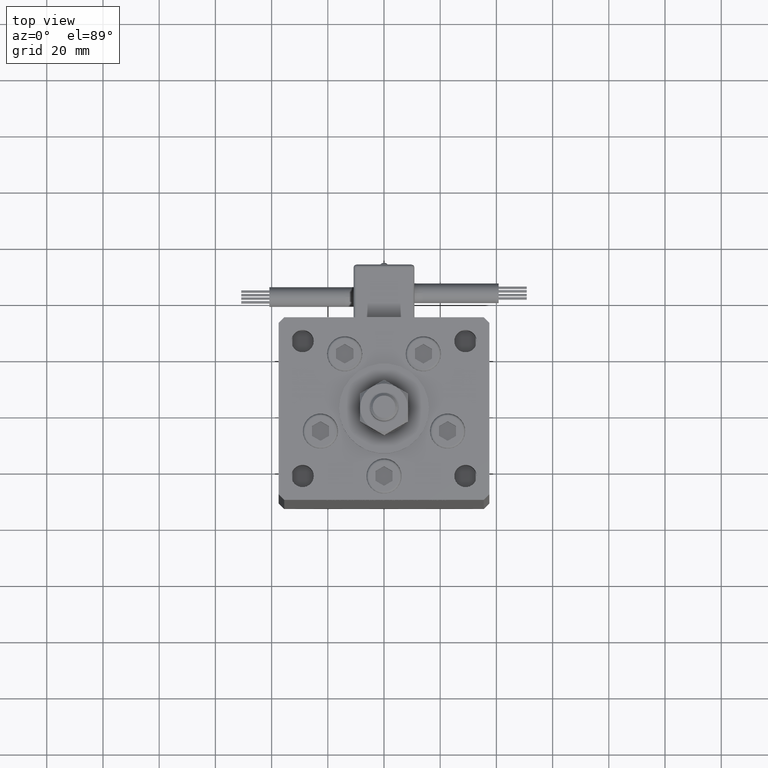
[diagram: clean part render]
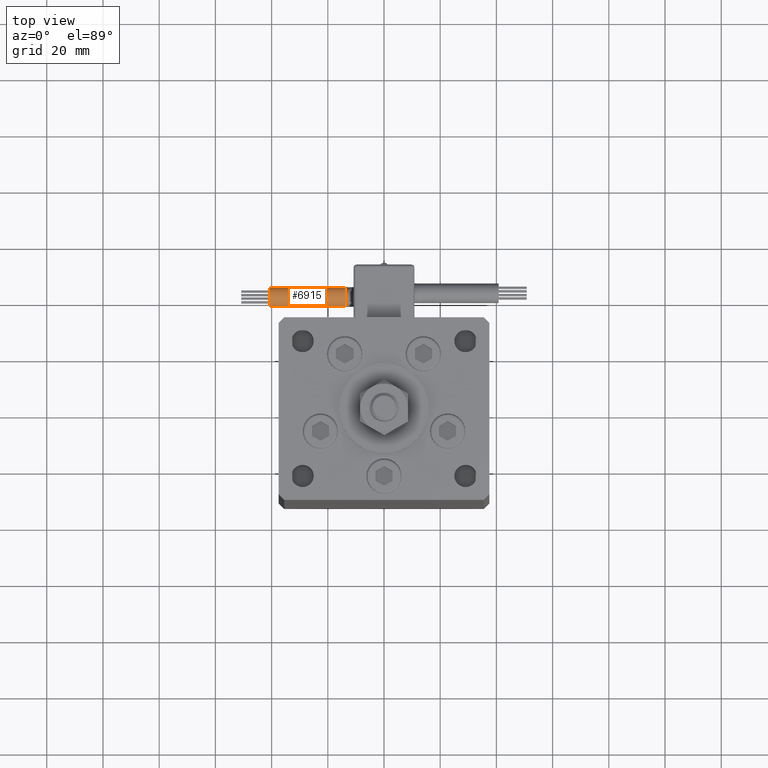
[diagram: same view with one face highlighted and labeled with its STEP entity id]
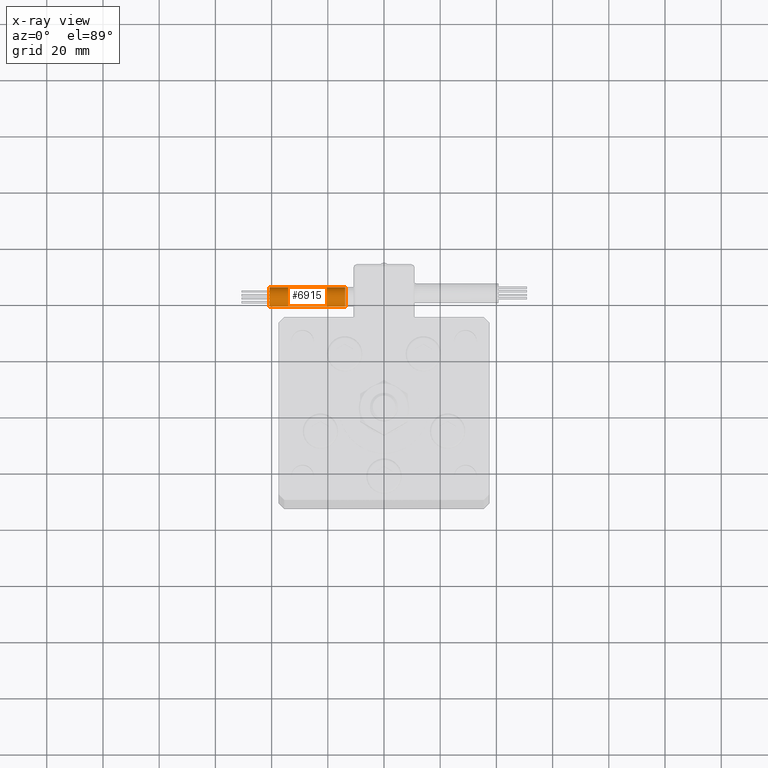
[diagram: x-ray of the same camera — body ghosted, the highlighted face saturated]
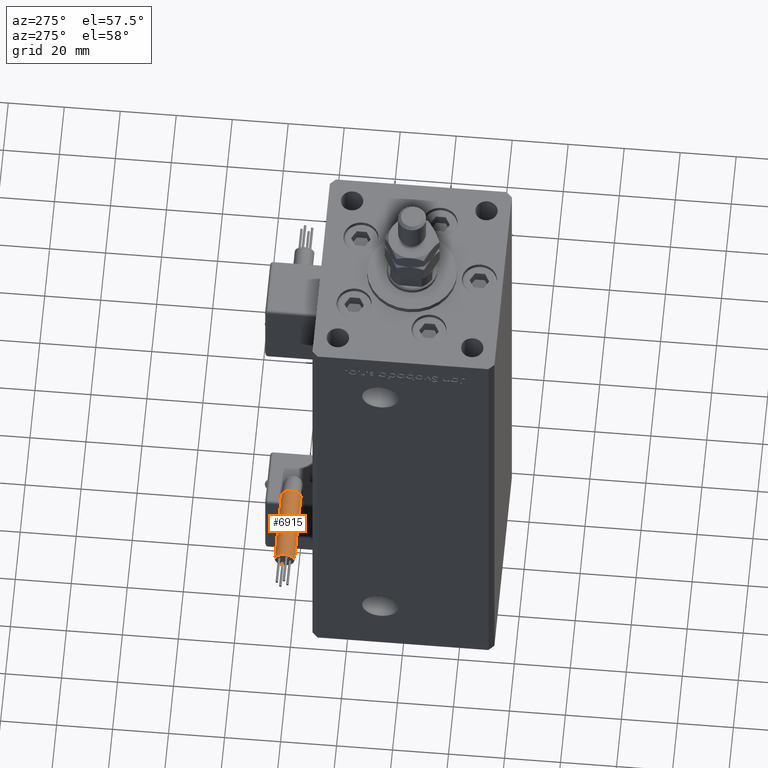
[diagram: same view with one face highlighted and labeled with its STEP entity id]
A machine part, top view. The second image highlights one B-rep face of the part: STEP entity #6915.
The next image is the same camera in x-ray: the body ghosted, the highlighted face saturated — about 0% of this face is hidden behind the body in this view.
A second angle (auxiliary view) of the same face is appended — the face is thin or edge-on in the first view.
In plain terms, the highlighted cylindrical surface (edge-blend (fillet) strip) has radius 3.5 mm, axis along (-1, -0, 0).
Its self-contained STEP definition (entity closure, byte-faithful):
#1194 = CARTESIAN_POINT ( 'NONE',  ( 40.80000000000000426, 38.50000000000000000, -65.00000000000000000 ) ) ;
#1781 = ORIENTED_EDGE ( 'NONE', *, *, #28322, .T. ) ;
#2211 = DIRECTION ( 'NONE',  ( 0.000000000000000000, 0.000000000000000000, -1.000000000000000000 ) ) ;
#2798 = EDGE_CURVE ( 'NONE', #25442, #54792, #56170, .T. ) ;
#3182 = DIRECTION ( 'NONE',  ( 1.000000000000000000, -2.599999999999999847E-16, 2.220446049250000002E-16 ) ) ;
#3421 = EDGE_CURVE ( 'NONE', #54792, #8565, #45185, .T. ) ;
#6128 = CARTESIAN_POINT ( 'NONE',  ( 13.79999999999999893, 45.50000000000000711, -65.00000000000000000 ) ) ;
#6915 = ADVANCED_FACE ( 'NONE', ( #32352 ), #19400, .T. ) ;
#8565 = VERTEX_POINT ( 'NONE', #6128 ) ;
#8568 = DIRECTION ( 'NONE',  ( 1.000000000000000000, 0.000000000000000000, 2.220446049250000002E-16 ) ) ;
#12619 = CARTESIAN_POINT ( 'NONE',  ( 13.79999999999999716, 38.50000000000000000, -65.00000000000000000 ) ) ;
#17493 = VERTEX_POINT ( 'NONE', #1194 ) ;
#18825 = EDGE_CURVE ( 'NONE', #25442, #17493, #25545, .T. ) ;
#19400 = CYLINDRICAL_SURFACE ( 'NONE', #38910, 3.500000000000003109 ) ;
#19802 = AXIS2_PLACEMENT_3D ( 'NONE', #30909, #48421, #44667 ) ;
#21332 = ORIENTED_EDGE ( 'NONE', *, *, #2798, .T. ) ;
#22235 = AXIS2_PLACEMENT_3D ( 'NONE', #28593, #28039, #2211 ) ;
#23317 = ORIENTED_EDGE ( 'NONE', *, *, #3421, .T. ) ;
#25040 = CARTESIAN_POINT ( 'NONE',  ( 40.80000000000000426, 45.50000000000000711, -65.00000000000000000 ) ) ;
#25442 = VERTEX_POINT ( 'NONE', #54991 ) ;
#25545 = LINE ( 'NONE', #12619, #54855 ) ;
#28039 = DIRECTION ( 'NONE',  ( 1.000000000000000000, 0.000000000000000000, 2.220446049250000002E-16 ) ) ;
#28042 = CARTESIAN_POINT ( 'NONE',  ( 13.79999999999999893, 42.00000000000000000, -65.00000000000000000 ) ) ;
#28322 = EDGE_CURVE ( 'NONE', #8565, #42099, #51473, .T. ) ;
#28593 = CARTESIAN_POINT ( 'NONE',  ( 13.79999999999999893, 42.00000000000000000, -65.00000000000000000 ) ) ;
#28596 = DIRECTION ( 'NONE',  ( -4.956352788505158337E-16, -1.000000000000000000, 0.000000000000000000 ) ) ;
#29659 = CARTESIAN_POINT ( 'NONE',  ( 13.80000000000000071, 45.50000000000000711, -65.00000000000000000 ) ) ;
#30909 = CARTESIAN_POINT ( 'NONE',  ( 40.80000000000000426, 42.00000000000000000, -65.00000000000000000 ) ) ;
#32352 = FACE_OUTER_BOUND ( 'NONE', #44243, .T. ) ;
#37194 = DIRECTION ( 'NONE',  ( 1.000000000000000000, -2.599999999999999847E-16, 2.220446049250000002E-16 ) ) ;
#38910 = AXIS2_PLACEMENT_3D ( 'NONE', #28042, #37194, #28596 ) ;
#42086 = VECTOR ( 'NONE', #55486, 1000.000000000000000 ) ;
#42099 = VERTEX_POINT ( 'NONE', #25040 ) ;
#43050 = ORIENTED_EDGE ( 'NONE', *, *, #18825, .F. ) ;
#44063 = ORIENTED_EDGE ( 'NONE', *, *, #55271, .F. ) ;
#44243 = EDGE_LOOP ( 'NONE', ( #21332, #23317, #1781, #44063, #43050 ) ) ;
#44290 = AXIS2_PLACEMENT_3D ( 'NONE', #52196, #8568, #52471 ) ;
#44667 = DIRECTION ( 'NONE',  ( 0.000000000000000000, 0.000000000000000000, -1.000000000000000000 ) ) ;
#45185 = CIRCLE ( 'NONE', #44290, 3.500000000000003109 ) ;
#46380 = CIRCLE ( 'NONE', #19802, 3.500000000000003109 ) ;
#48421 = DIRECTION ( 'NONE',  ( 1.000000000000000000, 0.000000000000000000, 2.220446049250000002E-16 ) ) ;
#51473 = LINE ( 'NONE', #29659, #42086 ) ;
#52196 = CARTESIAN_POINT ( 'NONE',  ( 13.79999999999999893, 42.00000000000000000, -65.00000000000000000 ) ) ;
#52471 = DIRECTION ( 'NONE',  ( 0.000000000000000000, 0.000000000000000000, -1.000000000000000000 ) ) ;
#54792 = VERTEX_POINT ( 'NONE', #55666 ) ;
#54855 = VECTOR ( 'NONE', #3182, 1000.000000000000000 ) ;
#54991 = CARTESIAN_POINT ( 'NONE',  ( 13.79999999999999893, 38.50000000000000000, -65.00000000000000000 ) ) ;
#55271 = EDGE_CURVE ( 'NONE', #17493, #42099, #46380, .T. ) ;
#55486 = DIRECTION ( 'NONE',  ( 1.000000000000000000, -2.599999999999999847E-16, 2.220446049250000002E-16 ) ) ;
#55666 = CARTESIAN_POINT ( 'NONE',  ( 13.79999999999999893, 42.00000000000000000, -68.50000000000000000 ) ) ;
#56170 = CIRCLE ( 'NONE', #22235, 3.500000000000003109 ) ;